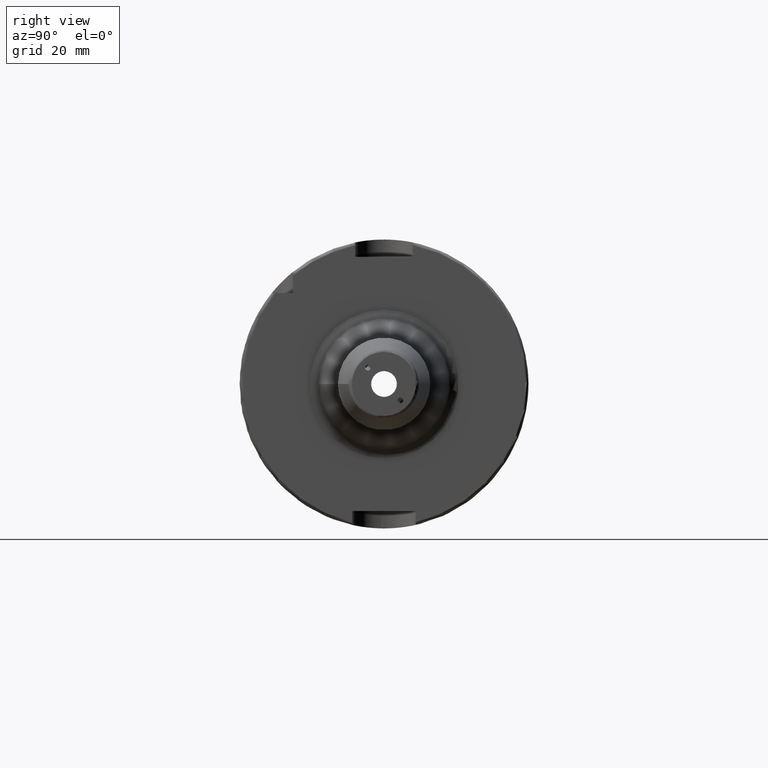
[diagram: clean part render]
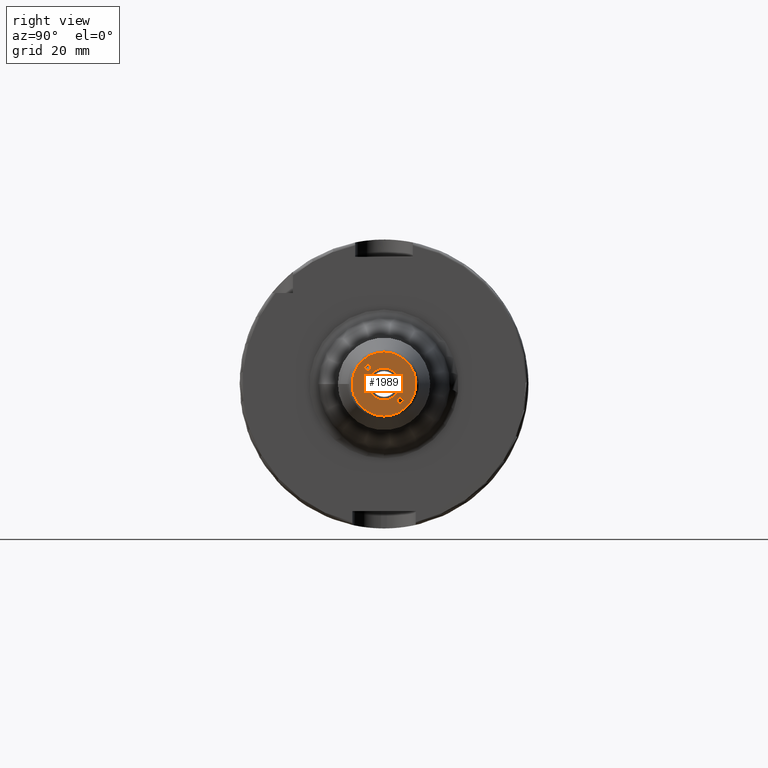
[diagram: same view with one face highlighted and labeled with its STEP entity id]
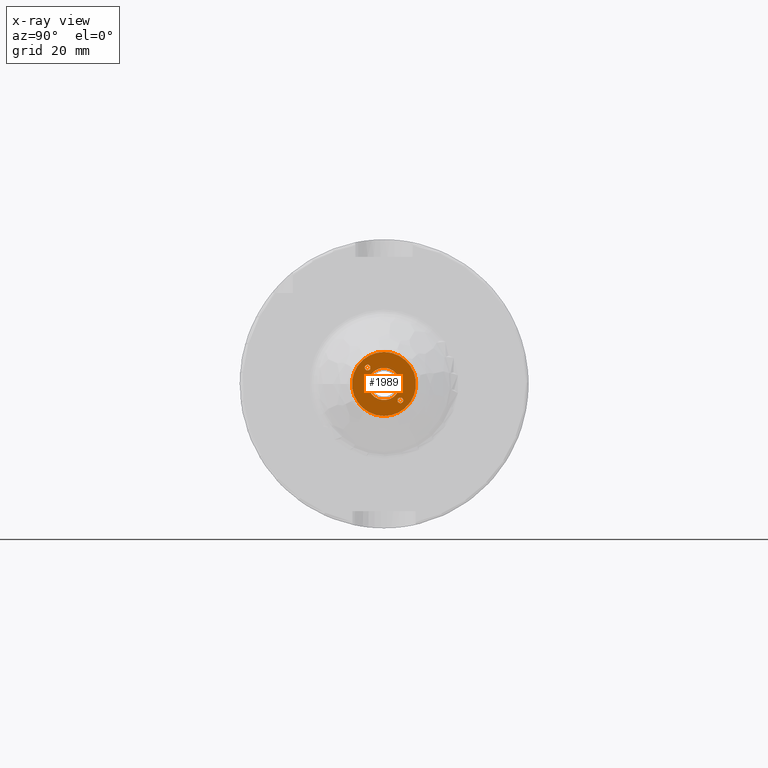
[diagram: x-ray of the same camera — body ghosted, the highlighted face saturated]
A machine part, right view. The second image highlights one B-rep face of the part: STEP entity #1989.
The next image is the same camera in x-ray: the body ghosted, the highlighted face saturated — about 0% of this face is hidden behind the body in this view.
In plain terms, the highlighted planar face has unit normal (1, 0, 0).
Its self-contained STEP definition (entity closure, byte-faithful):
#85=FACE_BOUND('',#335,.T.);
#86=FACE_BOUND('',#336,.T.);
#87=FACE_BOUND('',#337,.T.);
#98=PLANE('',#2141);
#161=ELLIPSE('',#2129,1.00060954429882,1.);
#162=ELLIPSE('',#2133,1.00060954429882,1.);
#214=FACE_OUTER_BOUND('',#334,.T.);
#334=EDGE_LOOP('',(#1355));
#335=EDGE_LOOP('',(#1356));
#336=EDGE_LOOP('',(#1357));
#337=EDGE_LOOP('',(#1358));
#679=CIRCLE('',#2135,11.0756095083418);
#684=CIRCLE('',#2142,5.55625);
#810=VERTEX_POINT('',#3020);
#813=VERTEX_POINT('',#3029);
#814=VERTEX_POINT('',#3033);
#818=VERTEX_POINT('',#3045);
#1016=EDGE_CURVE('',#810,#810,#161,.T.);
#1020=EDGE_CURVE('',#813,#813,#162,.T.);
#1022=EDGE_CURVE('',#814,#814,#679,.T.);
#1028=EDGE_CURVE('',#818,#818,#684,.T.);
#1355=ORIENTED_EDGE('',*,*,#1022,.F.);
#1356=ORIENTED_EDGE('',*,*,#1016,.T.);
#1357=ORIENTED_EDGE('',*,*,#1020,.T.);
#1358=ORIENTED_EDGE('',*,*,#1028,.F.);
#1989=ADVANCED_FACE('',(#214,#85,#86,#87),#98,.T.);
#2129=AXIS2_PLACEMENT_3D('',#3021,#2394,#2395);
#2133=AXIS2_PLACEMENT_3D('',#3030,#2404,#2405);
#2135=AXIS2_PLACEMENT_3D('',#3034,#2409,#2410);
#2141=AXIS2_PLACEMENT_3D('',#3044,#2422,#2423);
#2142=AXIS2_PLACEMENT_3D('',#3046,#2424,#2425);
#2394=DIRECTION('center_axis',(-1.,0.,0.));
#2395=DIRECTION('ref_axis',(0.,-0.707106781186578,0.707106781186517));
#2404=DIRECTION('center_axis',(-1.,0.,0.));
#2405=DIRECTION('ref_axis',(0.,0.707106781186578,-0.707106781186517));
#2409=DIRECTION('center_axis',(-1.,0.,0.));
#2410=DIRECTION('ref_axis',(0.,-1.,1.83697019872103E-16));
#2422=DIRECTION('center_axis',(1.,0.,0.));
#2423=DIRECTION('ref_axis',(0.,0.,-1.));
#2424=DIRECTION('center_axis',(1.,0.,0.));
#2425=DIRECTION('ref_axis',(0.,0.,-1.));
#3020=CARTESIAN_POINT('',(160.,-4.65654943091409,5.65624470522185));
#3021=CARTESIAN_POINT('Origin',(160.,-5.65685424949238,5.65685424949238));
#3029=CARTESIAN_POINT('',(160.,4.65654943091409,-5.65624470522185));
#3030=CARTESIAN_POINT('Origin',(160.,5.65685424949238,-5.65685424949238));
#3033=CARTESIAN_POINT('',(160.,-1.35637097329968E-15,11.0756095083418));
#3034=CARTESIAN_POINT('Origin',(160.,0.,0.));
#3044=CARTESIAN_POINT('Origin',(160.,5.55625,0.));
#3045=CARTESIAN_POINT('',(160.,-5.55624999999999,-6.80444377776247E-16));
#3046=CARTESIAN_POINT('Origin',(160.,0.,0.));